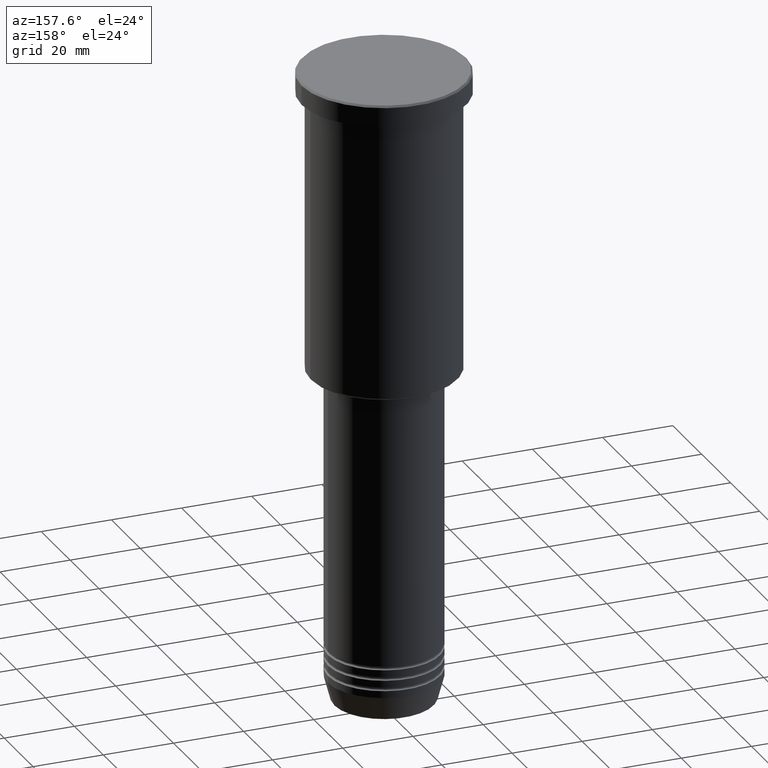
[diagram: clean part render]
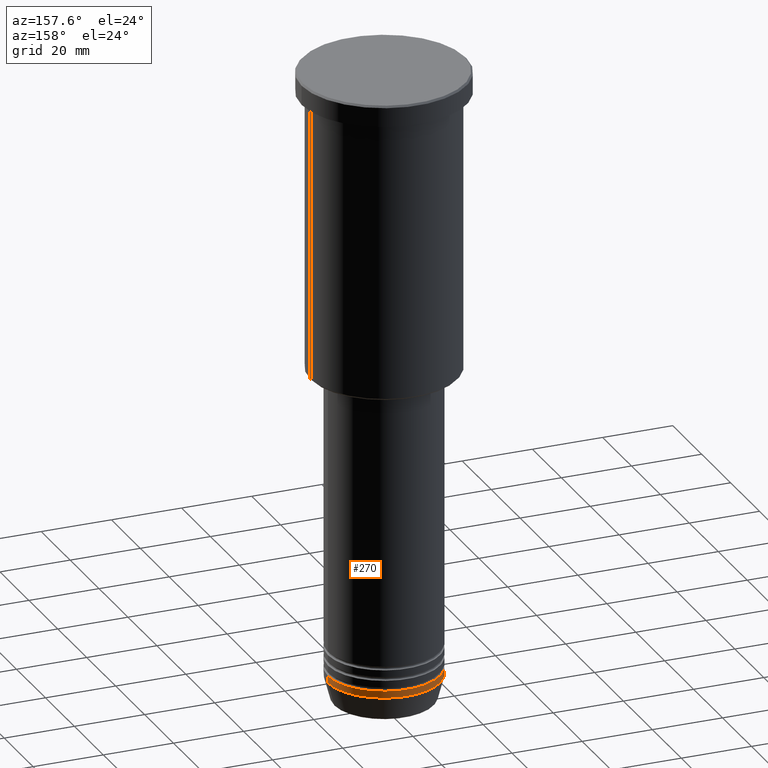
[diagram: same view with one face highlighted and labeled with its STEP entity id]
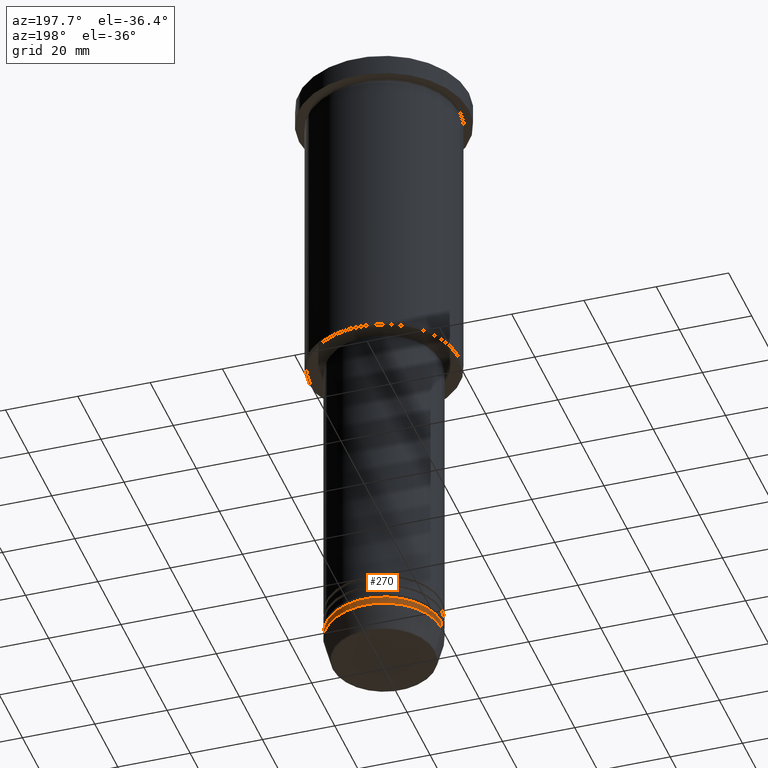
[diagram: same view with one face highlighted and labeled with its STEP entity id]
A machine part, auxiliary view. The second image highlights one B-rep face of the part: STEP entity #270.
A second angle (auxiliary view) of the same face is appended — the face is thin or edge-on in the first view.
In plain terms, the highlighted cylindrical surface (partial cylindrical patch) has radius 16 mm, axis along (-0, -0, 1).
Its self-contained STEP definition (entity closure, byte-faithful):
#8 = DIRECTION ( 'NONE',  ( -0.000000000000000000, -0.000000000000000000, 1.000000000000000000 ) ) ;
#85 = CARTESIAN_POINT ( 'NONE',  ( 0.000000000000000000, 0.000000000000000000, -172.0000000000000000 ) ) ;
#122 = CARTESIAN_POINT ( 'NONE',  ( 16.00000000000000000, 0.000000000000000000, -172.0000000000000000 ) ) ;
#182 = DIRECTION ( 'NONE',  ( 1.000000000000000000, 0.000000000000000000, 0.000000000000000000 ) ) ;
#256 = ORIENTED_EDGE ( 'NONE', *, *, #642, .F. ) ;
#266 = CARTESIAN_POINT ( 'NONE',  ( 0.000000000000000000, 0.000000000000000000, -174.0000000000000284 ) ) ;
#270 = ADVANCED_FACE ( 'NONE', ( #469 ), #453, .T. ) ;
#282 = DIRECTION ( 'NONE',  ( -0.000000000000000000, -0.000000000000000000, 1.000000000000000000 ) ) ;
#422 = EDGE_CURVE ( 'NONE', #1059, #924, #636, .T. ) ;
#453 = CYLINDRICAL_SURFACE ( 'NONE', #1098, 16.00000000000000000 ) ;
#469 = FACE_OUTER_BOUND ( 'NONE', #889, .T. ) ;
#492 = CARTESIAN_POINT ( 'NONE',  ( -16.00000000000000000, 1.959434878635765131E-15, -174.0000000000000284 ) ) ;
#555 = CARTESIAN_POINT ( 'NONE',  ( 0.000000000000000000, 0.000000000000000000, 0.000000000000000000 ) ) ;
#571 = CARTESIAN_POINT ( 'NONE',  ( 16.00000000000000000, 0.000000000000000000, 0.000000000000000000 ) ) ;
#587 = ORIENTED_EDGE ( 'NONE', *, *, #811, .F. ) ;
#610 = CARTESIAN_POINT ( 'NONE',  ( 16.00000000000000000, 0.000000000000000000, -174.0000000000000284 ) ) ;
#625 = DIRECTION ( 'NONE',  ( -0.000000000000000000, -0.000000000000000000, 1.000000000000000000 ) ) ;
#633 = VERTEX_POINT ( 'NONE', #899 ) ;
#636 = CIRCLE ( 'NONE', #686, 16.00000000000000000 ) ;
#639 = CIRCLE ( 'NONE', #707, 16.00000000000000000 ) ;
#642 = EDGE_CURVE ( 'NONE', #1029, #633, #639, .T. ) ;
#684 = ORIENTED_EDGE ( 'NONE', *, *, #1143, .T. ) ;
#686 = AXIS2_PLACEMENT_3D ( 'NONE', #266, #990, #182 ) ;
#691 = ORIENTED_EDGE ( 'NONE', *, *, #422, .T. ) ;
#707 = AXIS2_PLACEMENT_3D ( 'NONE', #85, #8, #1005 ) ;
#760 = VECTOR ( 'NONE', #625, 1000.000000000000000 ) ;
#811 = EDGE_CURVE ( 'NONE', #1059, #1029, #1027, .T. ) ;
#842 = DIRECTION ( 'NONE',  ( -0.000000000000000000, -0.000000000000000000, 1.000000000000000000 ) ) ;
#889 = EDGE_LOOP ( 'NONE', ( #691, #684, #256, #587 ) ) ;
#899 = CARTESIAN_POINT ( 'NONE',  ( -16.00000000000000000, 1.959434878635765131E-15, -172.0000000000000000 ) ) ;
#924 = VERTEX_POINT ( 'NONE', #492 ) ;
#978 = LINE ( 'NONE', #1003, #760 ) ;
#990 = DIRECTION ( 'NONE',  ( -0.000000000000000000, -0.000000000000000000, 1.000000000000000000 ) ) ;
#998 = VECTOR ( 'NONE', #282, 1000.000000000000000 ) ;
#1003 = CARTESIAN_POINT ( 'NONE',  ( -16.00000000000000000, 1.959434878635765131E-15, 0.000000000000000000 ) ) ;
#1005 = DIRECTION ( 'NONE',  ( 1.000000000000000000, 0.000000000000000000, 0.000000000000000000 ) ) ;
#1014 = DIRECTION ( 'NONE',  ( 1.000000000000000000, 0.000000000000000000, 0.000000000000000000 ) ) ;
#1027 = LINE ( 'NONE', #571, #998 ) ;
#1029 = VERTEX_POINT ( 'NONE', #122 ) ;
#1059 = VERTEX_POINT ( 'NONE', #610 ) ;
#1098 = AXIS2_PLACEMENT_3D ( 'NONE', #555, #842, #1014 ) ;
#1143 = EDGE_CURVE ( 'NONE', #924, #633, #978, .T. ) ;